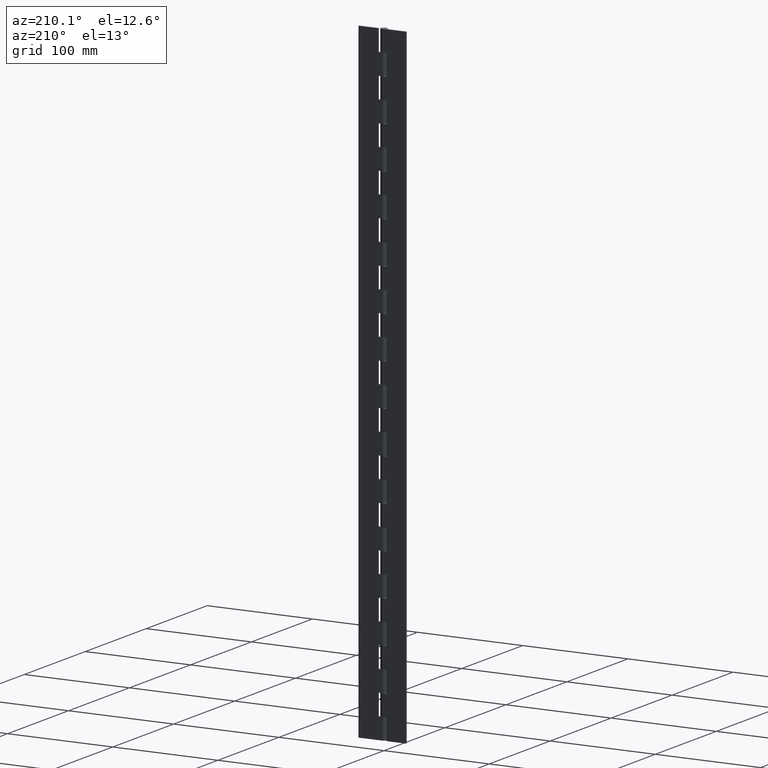
[diagram: clean part render]
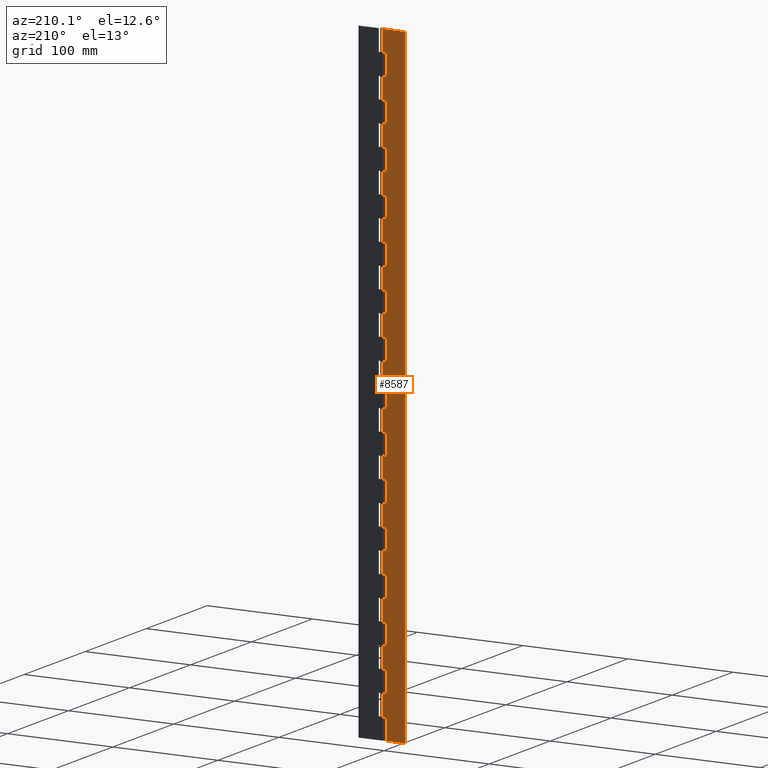
[diagram: same view with one face highlighted and labeled with its STEP entity id]
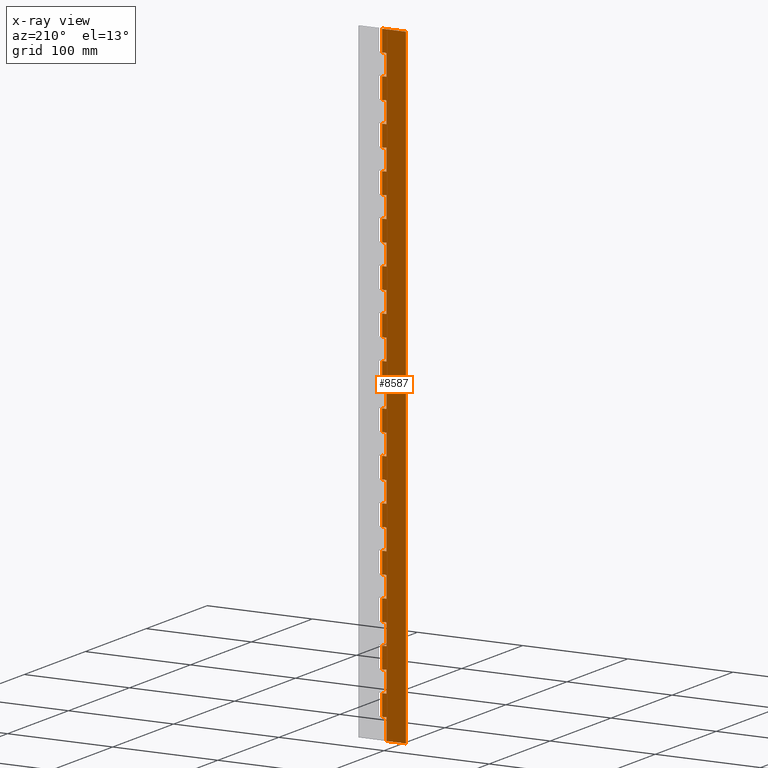
[diagram: x-ray of the same camera — body ghosted, the highlighted face saturated]
A machine part, auxiliary view. The second image highlights one B-rep face of the part: STEP entity #8587.
The next image is the same camera in x-ray: the body ghosted, the highlighted face saturated — about 0% of this face is hidden behind the body in this view.
In plain terms, the highlighted face is a freeform B-spline surface patch.
Its self-contained STEP definition (entity closure, byte-faithful):
#4504=CARTESIAN_POINT('',(0.0,3.0,560.0));
#4505=VERTEX_POINT('',#4504);
#4525=CARTESIAN_POINT('',(-4.0,3.0,560.0));
#4526=VERTEX_POINT('',#4525);
#4527=CARTESIAN_POINT('',(-4.0,3.0,560.0));
#4528=CARTESIAN_POINT('',(0.0,3.0,560.0));
#4529=QUASI_UNIFORM_CURVE('',1,(#4527,#4528),.UNSPECIFIED.,.F.,.U.);
#4530=EDGE_CURVE('',#4526,#4505,#4529,.T.);
#4554=CARTESIAN_POINT('',(-4.0,3.0,580.0));
#4555=VERTEX_POINT('',#4554);
#4561=CARTESIAN_POINT('',(0.0,3.0,580.0));
#4562=VERTEX_POINT('',#4561);
#4563=CARTESIAN_POINT('',(0.0,3.0,580.0));
#4564=CARTESIAN_POINT('',(-4.0,3.0,580.0));
#4565=QUASI_UNIFORM_CURVE('',1,(#4563,#4564),.UNSPECIFIED.,.F.,.U.);
#4566=EDGE_CURVE('',#4562,#4555,#4565,.T.);
#4629=CARTESIAN_POINT('',(-4.0,3.0,580.0));
#4630=CARTESIAN_POINT('',(-4.0,3.0,560.0));
#4631=QUASI_UNIFORM_CURVE('',1,(#4629,#4630),.UNSPECIFIED.,.F.,.U.);
#4632=EDGE_CURVE('',#4555,#4526,#4631,.T.);
#4680=CARTESIAN_POINT('',(0.0,3.0,520.0));
#4681=VERTEX_POINT('',#4680);
#4701=CARTESIAN_POINT('',(-4.0,3.0,520.0));
#4702=VERTEX_POINT('',#4701);
#4703=CARTESIAN_POINT('',(-4.0,3.0,520.0));
#4704=CARTESIAN_POINT('',(0.0,3.0,520.0));
#4705=QUASI_UNIFORM_CURVE('',1,(#4703,#4704),.UNSPECIFIED.,.F.,.U.);
#4706=EDGE_CURVE('',#4702,#4681,#4705,.T.);
#4730=CARTESIAN_POINT('',(-4.0,3.0,540.0));
#4731=VERTEX_POINT('',#4730);
#4737=CARTESIAN_POINT('',(0.0,3.0,540.0));
#4738=VERTEX_POINT('',#4737);
#4739=CARTESIAN_POINT('',(0.0,3.0,540.0));
#4740=CARTESIAN_POINT('',(-4.0,3.0,540.0));
#4741=QUASI_UNIFORM_CURVE('',1,(#4739,#4740),.UNSPECIFIED.,.F.,.U.);
#4742=EDGE_CURVE('',#4738,#4731,#4741,.T.);
#4805=CARTESIAN_POINT('',(-4.0,3.0,540.0));
#4806=CARTESIAN_POINT('',(-4.0,3.0,520.0));
#4807=QUASI_UNIFORM_CURVE('',1,(#4805,#4806),.UNSPECIFIED.,.F.,.U.);
#4808=EDGE_CURVE('',#4731,#4702,#4807,.T.);
#4856=CARTESIAN_POINT('',(0.0,3.0,480.0));
#4857=VERTEX_POINT('',#4856);
#4877=CARTESIAN_POINT('',(-4.0,3.0,480.0));
#4878=VERTEX_POINT('',#4877);
#4879=CARTESIAN_POINT('',(-4.0,3.0,480.0));
#4880=CARTESIAN_POINT('',(0.0,3.0,480.0));
#4881=QUASI_UNIFORM_CURVE('',1,(#4879,#4880),.UNSPECIFIED.,.F.,.U.);
#4882=EDGE_CURVE('',#4878,#4857,#4881,.T.);
#4906=CARTESIAN_POINT('',(-4.0,3.0,500.0));
#4907=VERTEX_POINT('',#4906);
#4913=CARTESIAN_POINT('',(0.0,3.0,500.0));
#4914=VERTEX_POINT('',#4913);
#4915=CARTESIAN_POINT('',(0.0,3.0,500.0));
#4916=CARTESIAN_POINT('',(-4.0,3.0,500.0));
#4917=QUASI_UNIFORM_CURVE('',1,(#4915,#4916),.UNSPECIFIED.,.F.,.U.);
#4918=EDGE_CURVE('',#4914,#4907,#4917,.T.);
#4981=CARTESIAN_POINT('',(-4.0,3.0,500.0));
#4982=CARTESIAN_POINT('',(-4.0,3.0,480.0));
#4983=QUASI_UNIFORM_CURVE('',1,(#4981,#4982),.UNSPECIFIED.,.F.,.U.);
#4984=EDGE_CURVE('',#4907,#4878,#4983,.T.);
#5032=CARTESIAN_POINT('',(0.0,3.0,440.0));
#5033=VERTEX_POINT('',#5032);
#5053=CARTESIAN_POINT('',(-4.0,3.0,440.0));
#5054=VERTEX_POINT('',#5053);
#5055=CARTESIAN_POINT('',(-4.0,3.0,440.0));
#5056=CARTESIAN_POINT('',(0.0,3.0,440.0));
#5057=QUASI_UNIFORM_CURVE('',1,(#5055,#5056),.UNSPECIFIED.,.F.,.U.);
#5058=EDGE_CURVE('',#5054,#5033,#5057,.T.);
#5082=CARTESIAN_POINT('',(-4.0,3.0,460.0));
#5083=VERTEX_POINT('',#5082);
#5089=CARTESIAN_POINT('',(0.0,3.0,460.0));
#5090=VERTEX_POINT('',#5089);
#5091=CARTESIAN_POINT('',(0.0,3.0,460.0));
#5092=CARTESIAN_POINT('',(-4.0,3.0,460.0));
#5093=QUASI_UNIFORM_CURVE('',1,(#5091,#5092),.UNSPECIFIED.,.F.,.U.);
#5094=EDGE_CURVE('',#5090,#5083,#5093,.T.);
#5157=CARTESIAN_POINT('',(-4.0,3.0,460.0));
#5158=CARTESIAN_POINT('',(-4.0,3.0,440.0));
#5159=QUASI_UNIFORM_CURVE('',1,(#5157,#5158),.UNSPECIFIED.,.F.,.U.);
#5160=EDGE_CURVE('',#5083,#5054,#5159,.T.);
#5208=CARTESIAN_POINT('',(0.0,3.0,400.0));
#5209=VERTEX_POINT('',#5208);
#5229=CARTESIAN_POINT('',(-4.0,3.0,400.0));
#5230=VERTEX_POINT('',#5229);
#5231=CARTESIAN_POINT('',(-4.0,3.0,400.0));
#5232=CARTESIAN_POINT('',(0.0,3.0,400.0));
#5233=QUASI_UNIFORM_CURVE('',1,(#5231,#5232),.UNSPECIFIED.,.F.,.U.);
#5234=EDGE_CURVE('',#5230,#5209,#5233,.T.);
#5258=CARTESIAN_POINT('',(-4.0,3.0,420.0));
#5259=VERTEX_POINT('',#5258);
#5265=CARTESIAN_POINT('',(0.0,3.0,420.0));
#5266=VERTEX_POINT('',#5265);
#5267=CARTESIAN_POINT('',(0.0,3.0,420.0));
#5268=CARTESIAN_POINT('',(-4.0,3.0,420.0));
#5269=QUASI_UNIFORM_CURVE('',1,(#5267,#5268),.UNSPECIFIED.,.F.,.U.);
#5270=EDGE_CURVE('',#5266,#5259,#5269,.T.);
#5333=CARTESIAN_POINT('',(-4.0,3.0,420.0));
#5334=CARTESIAN_POINT('',(-4.0,3.0,400.0));
#5335=QUASI_UNIFORM_CURVE('',1,(#5333,#5334),.UNSPECIFIED.,.F.,.U.);
#5336=EDGE_CURVE('',#5259,#5230,#5335,.T.);
#5384=CARTESIAN_POINT('',(0.0,3.0,360.0));
#5385=VERTEX_POINT('',#5384);
#5405=CARTESIAN_POINT('',(-4.0,3.0,360.0));
#5406=VERTEX_POINT('',#5405);
#5407=CARTESIAN_POINT('',(-4.0,3.0,360.0));
#5408=CARTESIAN_POINT('',(0.0,3.0,360.0));
#5409=QUASI_UNIFORM_CURVE('',1,(#5407,#5408),.UNSPECIFIED.,.F.,.U.);
#5410=EDGE_CURVE('',#5406,#5385,#5409,.T.);
#5434=CARTESIAN_POINT('',(-4.0,3.0,380.0));
#5435=VERTEX_POINT('',#5434);
#5441=CARTESIAN_POINT('',(0.0,3.0,380.0));
#5442=VERTEX_POINT('',#5441);
#5443=CARTESIAN_POINT('',(0.0,3.0,380.0));
#5444=CARTESIAN_POINT('',(-4.0,3.0,380.0));
#5445=QUASI_UNIFORM_CURVE('',1,(#5443,#5444),.UNSPECIFIED.,.F.,.U.);
#5446=EDGE_CURVE('',#5442,#5435,#5445,.T.);
#5509=CARTESIAN_POINT('',(-4.0,3.0,380.0));
#5510=CARTESIAN_POINT('',(-4.0,3.0,360.0));
#5511=QUASI_UNIFORM_CURVE('',1,(#5509,#5510),.UNSPECIFIED.,.F.,.U.);
#5512=EDGE_CURVE('',#5435,#5406,#5511,.T.);
#5560=CARTESIAN_POINT('',(0.0,3.0,320.0));
#5561=VERTEX_POINT('',#5560);
#5581=CARTESIAN_POINT('',(-4.0,3.0,320.0));
#5582=VERTEX_POINT('',#5581);
#5583=CARTESIAN_POINT('',(-4.0,3.0,320.0));
#5584=CARTESIAN_POINT('',(0.0,3.0,320.0));
#5585=QUASI_UNIFORM_CURVE('',1,(#5583,#5584),.UNSPECIFIED.,.F.,.U.);
#5586=EDGE_CURVE('',#5582,#5561,#5585,.T.);
#5610=CARTESIAN_POINT('',(-4.0,3.0,340.0));
#5611=VERTEX_POINT('',#5610);
#5617=CARTESIAN_POINT('',(0.0,3.0,340.0));
#5618=VERTEX_POINT('',#5617);
#5619=CARTESIAN_POINT('',(0.0,3.0,340.0));
#5620=CARTESIAN_POINT('',(-4.0,3.0,340.0));
#5621=QUASI_UNIFORM_CURVE('',1,(#5619,#5620),.UNSPECIFIED.,.F.,.U.);
#5622=EDGE_CURVE('',#5618,#5611,#5621,.T.);
#5685=CARTESIAN_POINT('',(-4.0,3.0,340.0));
#5686=CARTESIAN_POINT('',(-4.0,3.0,320.0));
#5687=QUASI_UNIFORM_CURVE('',1,(#5685,#5686),.UNSPECIFIED.,.F.,.U.);
#5688=EDGE_CURVE('',#5611,#5582,#5687,.T.);
#5736=CARTESIAN_POINT('',(0.0,3.0,280.0));
#5737=VERTEX_POINT('',#5736);
#5757=CARTESIAN_POINT('',(-4.0,3.0,280.0));
#5758=VERTEX_POINT('',#5757);
#5759=CARTESIAN_POINT('',(-4.0,3.0,280.0));
#5760=CARTESIAN_POINT('',(0.0,3.0,280.0));
#5761=QUASI_UNIFORM_CURVE('',1,(#5759,#5760),.UNSPECIFIED.,.F.,.U.);
#5762=EDGE_CURVE('',#5758,#5737,#5761,.T.);
#5786=CARTESIAN_POINT('',(-4.0,3.0,300.0));
#5787=VERTEX_POINT('',#5786);
#5793=CARTESIAN_POINT('',(0.0,3.0,300.0));
#5794=VERTEX_POINT('',#5793);
#5795=CARTESIAN_POINT('',(0.0,3.0,300.0));
#5796=CARTESIAN_POINT('',(-4.0,3.0,300.0));
#5797=QUASI_UNIFORM_CURVE('',1,(#5795,#5796),.UNSPECIFIED.,.F.,.U.);
#5798=EDGE_CURVE('',#5794,#5787,#5797,.T.);
#5861=CARTESIAN_POINT('',(-4.0,3.0,300.0));
#5862=CARTESIAN_POINT('',(-4.0,3.0,280.0));
#5863=QUASI_UNIFORM_CURVE('',1,(#5861,#5862),.UNSPECIFIED.,.F.,.U.);
#5864=EDGE_CURVE('',#5787,#5758,#5863,.T.);
#5912=CARTESIAN_POINT('',(0.0,3.0,240.0));
#5913=VERTEX_POINT('',#5912);
#5933=CARTESIAN_POINT('',(-4.0,3.0,240.0));
#5934=VERTEX_POINT('',#5933);
#5935=CARTESIAN_POINT('',(-4.0,3.0,240.0));
#5936=CARTESIAN_POINT('',(0.0,3.0,240.0));
#5937=QUASI_UNIFORM_CURVE('',1,(#5935,#5936),.UNSPECIFIED.,.F.,.U.);
#5938=EDGE_CURVE('',#5934,#5913,#5937,.T.);
#5962=CARTESIAN_POINT('',(-4.0,3.0,260.0));
#5963=VERTEX_POINT('',#5962);
#5969=CARTESIAN_POINT('',(0.0,3.0,260.0));
#5970=VERTEX_POINT('',#5969);
#5971=CARTESIAN_POINT('',(0.0,3.0,260.0));
#5972=CARTESIAN_POINT('',(-4.0,3.0,260.0));
#5973=QUASI_UNIFORM_CURVE('',1,(#5971,#5972),.UNSPECIFIED.,.F.,.U.);
#5974=EDGE_CURVE('',#5970,#5963,#5973,.T.);
#6037=CARTESIAN_POINT('',(-4.0,3.0,260.0));
#6038=CARTESIAN_POINT('',(-4.0,3.0,240.0));
#6039=QUASI_UNIFORM_CURVE('',1,(#6037,#6038),.UNSPECIFIED.,.F.,.U.);
#6040=EDGE_CURVE('',#5963,#5934,#6039,.T.);
#6088=CARTESIAN_POINT('',(0.0,3.0,200.0));
#6089=VERTEX_POINT('',#6088);
#6109=CARTESIAN_POINT('',(-4.0,3.0,200.0));
#6110=VERTEX_POINT('',#6109);
#6111=CARTESIAN_POINT('',(-4.0,3.0,200.0));
#6112=CARTESIAN_POINT('',(0.0,3.0,200.0));
#6113=QUASI_UNIFORM_CURVE('',1,(#6111,#6112),.UNSPECIFIED.,.F.,.U.);
#6114=EDGE_CURVE('',#6110,#6089,#6113,.T.);
#6138=CARTESIAN_POINT('',(-4.0,3.0,220.0));
#6139=VERTEX_POINT('',#6138);
#6145=CARTESIAN_POINT('',(0.0,3.0,220.0));
#6146=VERTEX_POINT('',#6145);
#6147=CARTESIAN_POINT('',(0.0,3.0,220.0));
#6148=CARTESIAN_POINT('',(-4.0,3.0,220.0));
#6149=QUASI_UNIFORM_CURVE('',1,(#6147,#6148),.UNSPECIFIED.,.F.,.U.);
#6150=EDGE_CURVE('',#6146,#6139,#6149,.T.);
#6213=CARTESIAN_POINT('',(-4.0,3.0,220.0));
#6214=CARTESIAN_POINT('',(-4.0,3.0,200.0));
#6215=QUASI_UNIFORM_CURVE('',1,(#6213,#6214),.UNSPECIFIED.,.F.,.U.);
#6216=EDGE_CURVE('',#6139,#6110,#6215,.T.);
#6264=CARTESIAN_POINT('',(0.0,3.0,160.0));
#6265=VERTEX_POINT('',#6264);
#6285=CARTESIAN_POINT('',(-4.0,3.0,160.0));
#6286=VERTEX_POINT('',#6285);
#6287=CARTESIAN_POINT('',(-4.0,3.0,160.0));
#6288=CARTESIAN_POINT('',(0.0,3.0,160.0));
#6289=QUASI_UNIFORM_CURVE('',1,(#6287,#6288),.UNSPECIFIED.,.F.,.U.);
#6290=EDGE_CURVE('',#6286,#6265,#6289,.T.);
#6314=CARTESIAN_POINT('',(-4.0,3.0,180.0));
#6315=VERTEX_POINT('',#6314);
#6321=CARTESIAN_POINT('',(0.0,3.0,180.0));
#6322=VERTEX_POINT('',#6321);
#6323=CARTESIAN_POINT('',(0.0,3.0,180.0));
#6324=CARTESIAN_POINT('',(-4.0,3.0,180.0));
#6325=QUASI_UNIFORM_CURVE('',1,(#6323,#6324),.UNSPECIFIED.,.F.,.U.);
#6326=EDGE_CURVE('',#6322,#6315,#6325,.T.);
#6389=CARTESIAN_POINT('',(-4.0,3.0,180.0));
#6390=CARTESIAN_POINT('',(-4.0,3.0,160.0));
#6391=QUASI_UNIFORM_CURVE('',1,(#6389,#6390),.UNSPECIFIED.,.F.,.U.);
#6392=EDGE_CURVE('',#6315,#6286,#6391,.T.);
#6440=CARTESIAN_POINT('',(0.0,3.0,120.0));
#6441=VERTEX_POINT('',#6440);
#6461=CARTESIAN_POINT('',(-4.0,3.0,120.0));
#6462=VERTEX_POINT('',#6461);
#6463=CARTESIAN_POINT('',(-4.0,3.0,120.0));
#6464=CARTESIAN_POINT('',(0.0,3.0,120.0));
#6465=QUASI_UNIFORM_CURVE('',1,(#6463,#6464),.UNSPECIFIED.,.F.,.U.);
#6466=EDGE_CURVE('',#6462,#6441,#6465,.T.);
#6490=CARTESIAN_POINT('',(-4.0,3.0,140.0));
#6491=VERTEX_POINT('',#6490);
#6497=CARTESIAN_POINT('',(0.0,3.0,140.0));
#6498=VERTEX_POINT('',#6497);
#6499=CARTESIAN_POINT('',(0.0,3.0,140.0));
#6500=CARTESIAN_POINT('',(-4.0,3.0,140.0));
#6501=QUASI_UNIFORM_CURVE('',1,(#6499,#6500),.UNSPECIFIED.,.F.,.U.);
#6502=EDGE_CURVE('',#6498,#6491,#6501,.T.);
#6565=CARTESIAN_POINT('',(-4.0,3.0,140.0));
#6566=CARTESIAN_POINT('',(-4.0,3.0,120.0));
#6567=QUASI_UNIFORM_CURVE('',1,(#6565,#6566),.UNSPECIFIED.,.F.,.U.);
#6568=EDGE_CURVE('',#6491,#6462,#6567,.T.);
#6616=CARTESIAN_POINT('',(0.0,3.0,80.0));
#6617=VERTEX_POINT('',#6616);
#6637=CARTESIAN_POINT('',(-4.0,3.0,80.0));
#6638=VERTEX_POINT('',#6637);
#6639=CARTESIAN_POINT('',(-4.0,3.0,80.0));
#6640=CARTESIAN_POINT('',(0.0,3.0,80.0));
#6641=QUASI_UNIFORM_CURVE('',1,(#6639,#6640),.UNSPECIFIED.,.F.,.U.);
#6642=EDGE_CURVE('',#6638,#6617,#6641,.T.);
#6666=CARTESIAN_POINT('',(-4.0,3.0,100.0));
#6667=VERTEX_POINT('',#6666);
#6673=CARTESIAN_POINT('',(0.0,3.0,100.0));
#6674=VERTEX_POINT('',#6673);
#6675=CARTESIAN_POINT('',(0.0,3.0,100.0));
#6676=CARTESIAN_POINT('',(-4.0,3.0,100.0));
#6677=QUASI_UNIFORM_CURVE('',1,(#6675,#6676),.UNSPECIFIED.,.F.,.U.);
#6678=EDGE_CURVE('',#6674,#6667,#6677,.T.);
#6741=CARTESIAN_POINT('',(-4.0,3.0,100.0));
#6742=CARTESIAN_POINT('',(-4.0,3.0,80.0));
#6743=QUASI_UNIFORM_CURVE('',1,(#6741,#6742),.UNSPECIFIED.,.F.,.U.);
#6744=EDGE_CURVE('',#6667,#6638,#6743,.T.);
#6792=CARTESIAN_POINT('',(0.0,3.0,40.0));
#6793=VERTEX_POINT('',#6792);
#6813=CARTESIAN_POINT('',(-4.0,3.0,40.0));
#6814=VERTEX_POINT('',#6813);
#6815=CARTESIAN_POINT('',(-4.0,3.0,40.0));
#6816=CARTESIAN_POINT('',(0.0,3.0,40.0));
#6817=QUASI_UNIFORM_CURVE('',1,(#6815,#6816),.UNSPECIFIED.,.F.,.U.);
#6818=EDGE_CURVE('',#6814,#6793,#6817,.T.);
#6842=CARTESIAN_POINT('',(-4.0,3.0,60.0));
#6843=VERTEX_POINT('',#6842);
#6849=CARTESIAN_POINT('',(0.0,3.0,60.0));
#6850=VERTEX_POINT('',#6849);
#6851=CARTESIAN_POINT('',(0.0,3.0,60.0));
#6852=CARTESIAN_POINT('',(-4.0,3.0,60.0));
#6853=QUASI_UNIFORM_CURVE('',1,(#6851,#6852),.UNSPECIFIED.,.F.,.U.);
#6854=EDGE_CURVE('',#6850,#6843,#6853,.T.);
#6917=CARTESIAN_POINT('',(-4.0,3.0,60.0));
#6918=CARTESIAN_POINT('',(-4.0,3.0,40.0));
#6919=QUASI_UNIFORM_CURVE('',1,(#6917,#6918),.UNSPECIFIED.,.F.,.U.);
#6920=EDGE_CURVE('',#6843,#6814,#6919,.T.);
#6940=CARTESIAN_POINT('',(-4.0,3.0,0.0));
#6941=VERTEX_POINT('',#6940);
#6947=CARTESIAN_POINT('',(-4.0,3.0,20.0));
#6948=VERTEX_POINT('',#6947);
#6949=CARTESIAN_POINT('',(-4.0,3.0,20.0));
#6950=CARTESIAN_POINT('',(-4.0,3.0,0.0));
#6951=QUASI_UNIFORM_CURVE('',1,(#6949,#6950),.UNSPECIFIED.,.F.,.U.);
#6952=EDGE_CURVE('',#6948,#6941,#6951,.T.);
#6975=CARTESIAN_POINT('',(0.0,3.0,20.0));
#6976=VERTEX_POINT('',#6975);
#6977=CARTESIAN_POINT('',(0.0,3.0,20.0));
#6978=CARTESIAN_POINT('',(-4.0,3.0,20.0));
#6979=QUASI_UNIFORM_CURVE('',1,(#6977,#6978),.UNSPECIFIED.,.F.,.U.);
#6980=EDGE_CURVE('',#6976,#6948,#6979,.T.);
#7037=CARTESIAN_POINT('',(1.836910E-016,3.0,600.0));
#7038=VERTEX_POINT('',#7037);
#7039=CARTESIAN_POINT('',(-22.500000000000000,3.0,600.0));
#7040=VERTEX_POINT('',#7039);
#7041=CARTESIAN_POINT('',(1.836910E-016,3.0,600.0));
#7042=CARTESIAN_POINT('',(-22.500000000000000,3.0,600.0));
#7043=QUASI_UNIFORM_CURVE('',1,(#7041,#7042),.UNSPECIFIED.,.F.,.U.);
#7044=EDGE_CURVE('',#7038,#7040,#7043,.T.);
#7115=CARTESIAN_POINT('',(-22.500000000000000,3.0,0.0));
#7116=VERTEX_POINT('',#7115);
#7130=CARTESIAN_POINT('',(-22.500000000000000,3.0,600.0));
#7131=CARTESIAN_POINT('',(-22.500000000000000,3.0,0.0));
#7132=QUASI_UNIFORM_CURVE('',1,(#7130,#7131),.UNSPECIFIED.,.F.,.U.);
#7133=EDGE_CURVE('',#7040,#7116,#7132,.T.);
#7150=CARTESIAN_POINT('',(-4.0,3.0,0.0));
#7151=CARTESIAN_POINT('',(-22.500000000000000,3.0,0.0));
#7152=QUASI_UNIFORM_CURVE('',1,(#7150,#7151),.UNSPECIFIED.,.F.,.U.);
#7153=EDGE_CURVE('',#6941,#7116,#7152,.T.);
#7187=CARTESIAN_POINT('',(0.0,3.0,40.0));
#7188=CARTESIAN_POINT('',(0.0,3.0,20.0));
#7189=QUASI_UNIFORM_CURVE('',1,(#7187,#7188),.UNSPECIFIED.,.F.,.U.);
#7190=EDGE_CURVE('',#6793,#6976,#7189,.T.);
#7273=CARTESIAN_POINT('',(0.0,3.0,80.0));
#7274=CARTESIAN_POINT('',(0.0,3.0,60.0));
#7275=QUASI_UNIFORM_CURVE('',1,(#7273,#7274),.UNSPECIFIED.,.F.,.U.);
#7276=EDGE_CURVE('',#6617,#6850,#7275,.T.);
#7359=CARTESIAN_POINT('',(0.0,3.0,120.0));
#7360=CARTESIAN_POINT('',(0.0,3.0,100.0));
#7361=QUASI_UNIFORM_CURVE('',1,(#7359,#7360),.UNSPECIFIED.,.F.,.U.);
#7362=EDGE_CURVE('',#6441,#6674,#7361,.T.);
#7445=CARTESIAN_POINT('',(0.0,3.0,160.0));
#7446=CARTESIAN_POINT('',(0.0,3.0,140.0));
#7447=QUASI_UNIFORM_CURVE('',1,(#7445,#7446),.UNSPECIFIED.,.F.,.U.);
#7448=EDGE_CURVE('',#6265,#6498,#7447,.T.);
#7531=CARTESIAN_POINT('',(0.0,3.0,200.0));
#7532=CARTESIAN_POINT('',(0.0,3.0,180.0));
#7533=QUASI_UNIFORM_CURVE('',1,(#7531,#7532),.UNSPECIFIED.,.F.,.U.);
#7534=EDGE_CURVE('',#6089,#6322,#7533,.T.);
#7617=CARTESIAN_POINT('',(0.0,3.0,240.0));
#7618=CARTESIAN_POINT('',(0.0,3.0,220.0));
#7619=QUASI_UNIFORM_CURVE('',1,(#7617,#7618),.UNSPECIFIED.,.F.,.U.);
#7620=EDGE_CURVE('',#5913,#6146,#7619,.T.);
#7703=CARTESIAN_POINT('',(0.0,3.0,280.0));
#7704=CARTESIAN_POINT('',(0.0,3.0,260.0));
#7705=QUASI_UNIFORM_CURVE('',1,(#7703,#7704),.UNSPECIFIED.,.F.,.U.);
#7706=EDGE_CURVE('',#5737,#5970,#7705,.T.);
#7789=CARTESIAN_POINT('',(0.0,3.0,320.0));
#7790=CARTESIAN_POINT('',(0.0,3.0,300.0));
#7791=QUASI_UNIFORM_CURVE('',1,(#7789,#7790),.UNSPECIFIED.,.F.,.U.);
#7792=EDGE_CURVE('',#5561,#5794,#7791,.T.);
#7875=CARTESIAN_POINT('',(0.0,3.0,360.0));
#7876=CARTESIAN_POINT('',(0.0,3.0,340.0));
#7877=QUASI_UNIFORM_CURVE('',1,(#7875,#7876),.UNSPECIFIED.,.F.,.U.);
#7878=EDGE_CURVE('',#5385,#5618,#7877,.T.);
#7961=CARTESIAN_POINT('',(0.0,3.0,400.0));
#7962=CARTESIAN_POINT('',(0.0,3.0,380.0));
#7963=QUASI_UNIFORM_CURVE('',1,(#7961,#7962),.UNSPECIFIED.,.F.,.U.);
#7964=EDGE_CURVE('',#5209,#5442,#7963,.T.);
#8047=CARTESIAN_POINT('',(0.0,3.0,440.0));
#8048=CARTESIAN_POINT('',(0.0,3.0,420.0));
#8049=QUASI_UNIFORM_CURVE('',1,(#8047,#8048),.UNSPECIFIED.,.F.,.U.);
#8050=EDGE_CURVE('',#5033,#5266,#8049,.T.);
#8133=CARTESIAN_POINT('',(0.0,3.0,480.0));
#8134=CARTESIAN_POINT('',(0.0,3.0,460.0));
#8135=QUASI_UNIFORM_CURVE('',1,(#8133,#8134),.UNSPECIFIED.,.F.,.U.);
#8136=EDGE_CURVE('',#4857,#5090,#8135,.T.);
#8219=CARTESIAN_POINT('',(0.0,3.0,520.0));
#8220=CARTESIAN_POINT('',(0.0,3.0,500.0));
#8221=QUASI_UNIFORM_CURVE('',1,(#8219,#8220),.UNSPECIFIED.,.F.,.U.);
#8222=EDGE_CURVE('',#4681,#4914,#8221,.T.);
#8305=CARTESIAN_POINT('',(0.0,3.0,560.0));
#8306=CARTESIAN_POINT('',(0.0,3.0,540.0));
#8307=QUASI_UNIFORM_CURVE('',1,(#8305,#8306),.UNSPECIFIED.,.F.,.U.);
#8308=EDGE_CURVE('',#4505,#4738,#8307,.T.);
#8336=CARTESIAN_POINT('',(1.836910E-016,3.0,600.0));
#8337=CARTESIAN_POINT('',(0.0,3.0,580.0));
#8338=QUASI_UNIFORM_CURVE('',1,(#8336,#8337),.UNSPECIFIED.,.F.,.U.);
#8339=EDGE_CURVE('',#7038,#4562,#8338,.T.);
#8518=CARTESIAN_POINT('',(-23.623874956390630,3.0,629.969998837083610));
#8519=CARTESIAN_POINT('',(-23.623874956390630,3.0,-29.970014930337669));
#8520=CARTESIAN_POINT('',(1.123875559887663,3.0,629.969998837083610));
#8521=CARTESIAN_POINT('',(1.123875559887663,3.0,-29.970014930337669));
#8522=B_SPLINE_SURFACE_WITH_KNOTS('',1,1,((#8518,#8520),(#8519,#8521)),.UNSPECIFIED.,.F.,.F.,.U.,(2,2),(2,2),(0.0,659.940013767421310),(0.0,24.747750516278298),.UNSPECIFIED.);
#8523=ORIENTED_EDGE('',*,*,#4566,.T.);
#8524=ORIENTED_EDGE('',*,*,#4632,.T.);
#8525=ORIENTED_EDGE('',*,*,#4530,.T.);
#8526=ORIENTED_EDGE('',*,*,#8308,.T.);
#8527=ORIENTED_EDGE('',*,*,#4742,.T.);
#8528=ORIENTED_EDGE('',*,*,#4808,.T.);
#8529=ORIENTED_EDGE('',*,*,#4706,.T.);
#8530=ORIENTED_EDGE('',*,*,#8222,.T.);
#8531=ORIENTED_EDGE('',*,*,#4918,.T.);
#8532=ORIENTED_EDGE('',*,*,#4984,.T.);
#8533=ORIENTED_EDGE('',*,*,#4882,.T.);
#8534=ORIENTED_EDGE('',*,*,#8136,.T.);
#8535=ORIENTED_EDGE('',*,*,#5094,.T.);
#8536=ORIENTED_EDGE('',*,*,#5160,.T.);
#8537=ORIENTED_EDGE('',*,*,#5058,.T.);
#8538=ORIENTED_EDGE('',*,*,#8050,.T.);
#8539=ORIENTED_EDGE('',*,*,#5270,.T.);
#8540=ORIENTED_EDGE('',*,*,#5336,.T.);
#8541=ORIENTED_EDGE('',*,*,#5234,.T.);
#8542=ORIENTED_EDGE('',*,*,#7964,.T.);
#8543=ORIENTED_EDGE('',*,*,#5446,.T.);
#8544=ORIENTED_EDGE('',*,*,#5512,.T.);
#8545=ORIENTED_EDGE('',*,*,#5410,.T.);
#8546=ORIENTED_EDGE('',*,*,#7878,.T.);
#8547=ORIENTED_EDGE('',*,*,#5622,.T.);
#8548=ORIENTED_EDGE('',*,*,#5688,.T.);
#8549=ORIENTED_EDGE('',*,*,#5586,.T.);
#8550=ORIENTED_EDGE('',*,*,#7792,.T.);
#8551=ORIENTED_EDGE('',*,*,#5798,.T.);
#8552=ORIENTED_EDGE('',*,*,#5864,.T.);
#8553=ORIENTED_EDGE('',*,*,#5762,.T.);
#8554=ORIENTED_EDGE('',*,*,#7706,.T.);
#8555=ORIENTED_EDGE('',*,*,#5974,.T.);
#8556=ORIENTED_EDGE('',*,*,#6040,.T.);
#8557=ORIENTED_EDGE('',*,*,#5938,.T.);
#8558=ORIENTED_EDGE('',*,*,#7620,.T.);
#8559=ORIENTED_EDGE('',*,*,#6150,.T.);
#8560=ORIENTED_EDGE('',*,*,#6216,.T.);
#8561=ORIENTED_EDGE('',*,*,#6114,.T.);
#8562=ORIENTED_EDGE('',*,*,#7534,.T.);
#8563=ORIENTED_EDGE('',*,*,#6326,.T.);
#8564=ORIENTED_EDGE('',*,*,#6392,.T.);
#8565=ORIENTED_EDGE('',*,*,#6290,.T.);
#8566=ORIENTED_EDGE('',*,*,#7448,.T.);
#8567=ORIENTED_EDGE('',*,*,#6502,.T.);
#8568=ORIENTED_EDGE('',*,*,#6568,.T.);
#8569=ORIENTED_EDGE('',*,*,#6466,.T.);
#8570=ORIENTED_EDGE('',*,*,#7362,.T.);
#8571=ORIENTED_EDGE('',*,*,#6678,.T.);
#8572=ORIENTED_EDGE('',*,*,#6744,.T.);
#8573=ORIENTED_EDGE('',*,*,#6642,.T.);
#8574=ORIENTED_EDGE('',*,*,#7276,.T.);
#8575=ORIENTED_EDGE('',*,*,#6854,.T.);
#8576=ORIENTED_EDGE('',*,*,#6920,.T.);
#8577=ORIENTED_EDGE('',*,*,#6818,.T.);
#8578=ORIENTED_EDGE('',*,*,#7190,.T.);
#8579=ORIENTED_EDGE('',*,*,#6980,.T.);
#8580=ORIENTED_EDGE('',*,*,#6952,.T.);
#8581=ORIENTED_EDGE('',*,*,#7153,.T.);
#8582=ORIENTED_EDGE('',*,*,#7133,.F.);
#8583=ORIENTED_EDGE('',*,*,#7044,.F.);
#8584=ORIENTED_EDGE('',*,*,#8339,.T.);
#8585=EDGE_LOOP('',(#8523,#8524,#8525,#8526,#8527,#8528,#8529,#8530,#8531,#8532,#8533,#8534,#8535,#8536,#8537,#8538,#8539,#8540,#8541,#8542,#8543,#8544,#8545,#8546,#8547,#8548,#8549,#8550,#8551,#8552,#8553,#8554,#8555,#8556,#8557,#8558,#8559,#8560,#8561,#8562,#8563,#8564,#8565,#8566,#8567,#8568,#8569,#8570,#8571,#8572,#8573,#8574,#8575,#8576,#8577,#8578,#8579,#8580,#8581,#8582,#8583,#8584));
#8586=FACE_OUTER_BOUND('',#8585,.T.);
#8587=ADVANCED_FACE('',(#8586),#8522,.F.);